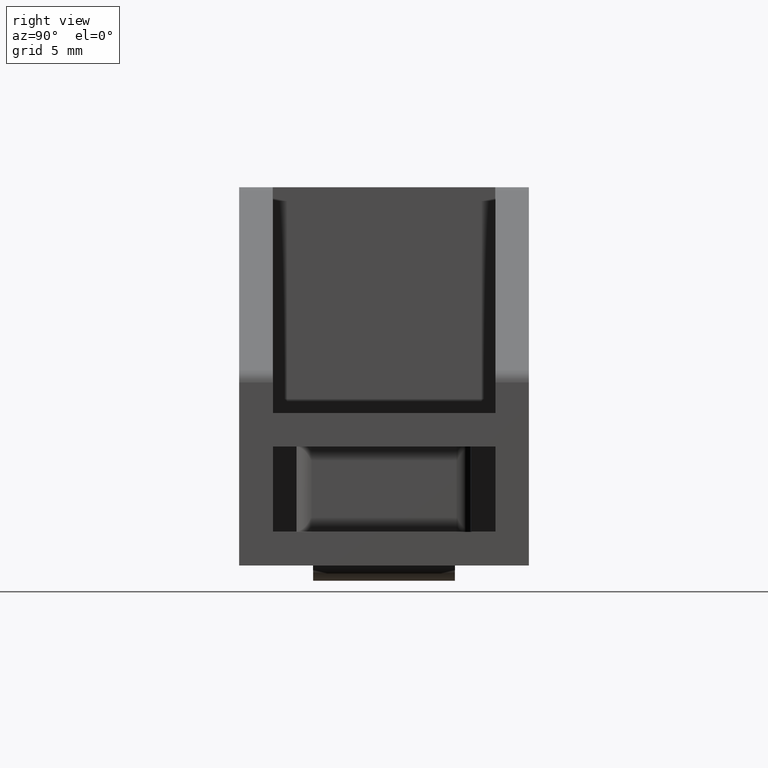
[diagram: clean part render]
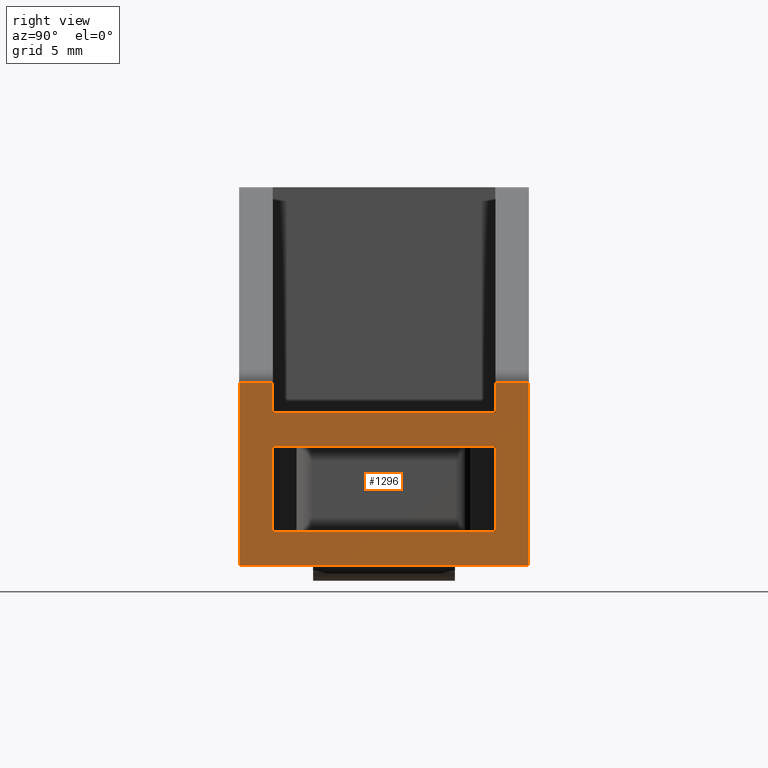
[diagram: same view with one face highlighted and labeled with its STEP entity id]
A machine part, right view. The second image highlights one B-rep face of the part: STEP entity #1296.
In plain terms, the highlighted planar face has unit normal (-1, 0, 0).
Its self-contained STEP definition (entity closure, byte-faithful):
#34=PLANE('',#1386);
#107=LINE('',#1939,#251);
#115=LINE('',#1957,#259);
#118=LINE('',#1967,#262);
#135=LINE('',#2004,#279);
#140=LINE('',#2017,#284);
#141=LINE('',#2019,#285);
#142=LINE('',#2020,#286);
#143=LINE('',#2022,#287);
#144=LINE('',#2024,#288);
#145=LINE('',#2025,#289);
#146=LINE('',#2026,#290);
#147=LINE('',#2027,#291);
#251=VECTOR('',#1558,14.6);
#259=VECTOR('',#1570,14.6);
#262=VECTOR('',#1579,19.);
#279=VECTOR('',#1612,14.6);
#284=VECTOR('',#1631,1.99817651737146);
#285=VECTOR('',#1632,2.2);
#286=VECTOR('',#1633,11.9981765173715);
#287=VECTOR('',#1634,11.9981765173715);
#288=VECTOR('',#1635,2.2);
#289=VECTOR('',#1636,1.99817651737146);
#290=VECTOR('',#1637,5.6);
#291=VECTOR('',#1638,5.6);
#357=FACE_BOUND('',#459,.T.);
#389=FACE_OUTER_BOUND('',#458,.T.);
#458=EDGE_LOOP('',(#1038,#1039,#1040,#1041,#1042,#1043,#1044,#1045));
#459=EDGE_LOOP('',(#1046,#1047,#1048,#1049));
#588=VERTEX_POINT('',#1936);
#589=VERTEX_POINT('',#1938);
#594=VERTEX_POINT('',#1950);
#597=VERTEX_POINT('',#1955);
#600=VERTEX_POINT('',#1964);
#601=VERTEX_POINT('',#1966);
#612=VERTEX_POINT('',#2001);
#613=VERTEX_POINT('',#2003);
#614=VERTEX_POINT('',#2016);
#615=VERTEX_POINT('',#2018);
#616=VERTEX_POINT('',#2021);
#617=VERTEX_POINT('',#2023);
#731=EDGE_CURVE('',#589,#588,#107,.T.);
#740=EDGE_CURVE('',#594,#597,#115,.T.);
#745=EDGE_CURVE('',#601,#600,#118,.T.);
#765=EDGE_CURVE('',#613,#612,#135,.T.);
#770=EDGE_CURVE('',#612,#614,#140,.T.);
#771=EDGE_CURVE('',#615,#614,#141,.T.);
#772=EDGE_CURVE('',#601,#615,#142,.T.);
#773=EDGE_CURVE('',#616,#600,#143,.T.);
#774=EDGE_CURVE('',#617,#616,#144,.T.);
#775=EDGE_CURVE('',#617,#613,#145,.T.);
#776=EDGE_CURVE('',#588,#594,#146,.T.);
#777=EDGE_CURVE('',#597,#589,#147,.T.);
#1038=ORIENTED_EDGE('',*,*,#770,.T.);
#1039=ORIENTED_EDGE('',*,*,#771,.F.);
#1040=ORIENTED_EDGE('',*,*,#772,.F.);
#1041=ORIENTED_EDGE('',*,*,#745,.T.);
#1042=ORIENTED_EDGE('',*,*,#773,.F.);
#1043=ORIENTED_EDGE('',*,*,#774,.F.);
#1044=ORIENTED_EDGE('',*,*,#775,.T.);
#1045=ORIENTED_EDGE('',*,*,#765,.T.);
#1046=ORIENTED_EDGE('',*,*,#731,.T.);
#1047=ORIENTED_EDGE('',*,*,#776,.T.);
#1048=ORIENTED_EDGE('',*,*,#740,.T.);
#1049=ORIENTED_EDGE('',*,*,#777,.T.);
#1296=ADVANCED_FACE('',(#389,#357),#34,.F.);
#1386=AXIS2_PLACEMENT_3D('',#2015,#1629,#1630);
#1558=DIRECTION('',(5.40315688507542E-32,1.,1.52085345839063E-16));
#1570=DIRECTION('',(0.,-1.,0.));
#1579=DIRECTION('',(0.,1.,0.));
#1612=DIRECTION('',(-1.08063137701508E-31,-1.,-3.04170691678125E-16));
#1629=DIRECTION('center_axis',(-1.,1.43784292294328E-16,3.72747415682452E-16));
#1630=DIRECTION('ref_axis',(3.5527136788005E-16,0.,1.));
#1631=DIRECTION('',(3.5527136788005E-16,0.,1.));
#1632=DIRECTION('',(0.,1.,0.));
#1633=DIRECTION('',(3.5527136788005E-16,0.,1.));
#1634=DIRECTION('',(-3.5527136788005E-16,0.,-1.));
#1635=DIRECTION('',(0.,1.,0.));
#1636=DIRECTION('',(-3.5527136788005E-16,0.,-1.));
#1637=DIRECTION('',(-3.5527136788005E-16,0.,-1.));
#1638=DIRECTION('',(3.5527136788005E-16,0.,1.));
#1936=CARTESIAN_POINT('',(25.,7.3,7.79999999999999));
#1938=CARTESIAN_POINT('',(25.,-7.3,7.79999999999999));
#1939=CARTESIAN_POINT('',(25.,-7.3,7.79999999999999));
#1950=CARTESIAN_POINT('',(25.,7.3,2.2));
#1955=CARTESIAN_POINT('',(25.,-7.3,2.2));
#1957=CARTESIAN_POINT('',(25.,0.,2.2));
#1964=CARTESIAN_POINT('',(25.,9.5,-4.44089209850063E-15));
#1966=CARTESIAN_POINT('',(25.,-9.5,-4.44089209850063E-15));
#1967=CARTESIAN_POINT('',(25.,0.,-4.44089209850063E-15));
#2001=CARTESIAN_POINT('',(25.,-7.3,9.99999999999999));
#2003=CARTESIAN_POINT('',(25.,7.3,9.99999999999999));
#2004=CARTESIAN_POINT('',(25.,7.3,9.99999999999999));
#2015=CARTESIAN_POINT('Origin',(25.,1.05322496755735E-15,8.89999999999999));
#2016=CARTESIAN_POINT('',(25.,-7.3,11.9981765173715));
#2017=CARTESIAN_POINT('',(25.,-7.3,11.6136610469693));
#2018=CARTESIAN_POINT('',(25.,-9.5,11.9981765173715));
#2019=CARTESIAN_POINT('',(25.,0.,11.9981765173715));
#2020=CARTESIAN_POINT('',(25.,-9.5,12.5));
#2021=CARTESIAN_POINT('',(25.,9.5,11.9981765173715));
#2022=CARTESIAN_POINT('',(25.,9.5,12.5));
#2023=CARTESIAN_POINT('',(25.,7.3,11.9981765173715));
#2024=CARTESIAN_POINT('',(25.,0.,11.9981765173715));
#2025=CARTESIAN_POINT('',(25.,7.3,11.6136610469693));
#2026=CARTESIAN_POINT('',(25.,7.3,11.6136610469693));
#2027=CARTESIAN_POINT('',(25.,-7.3,11.6136610469693));